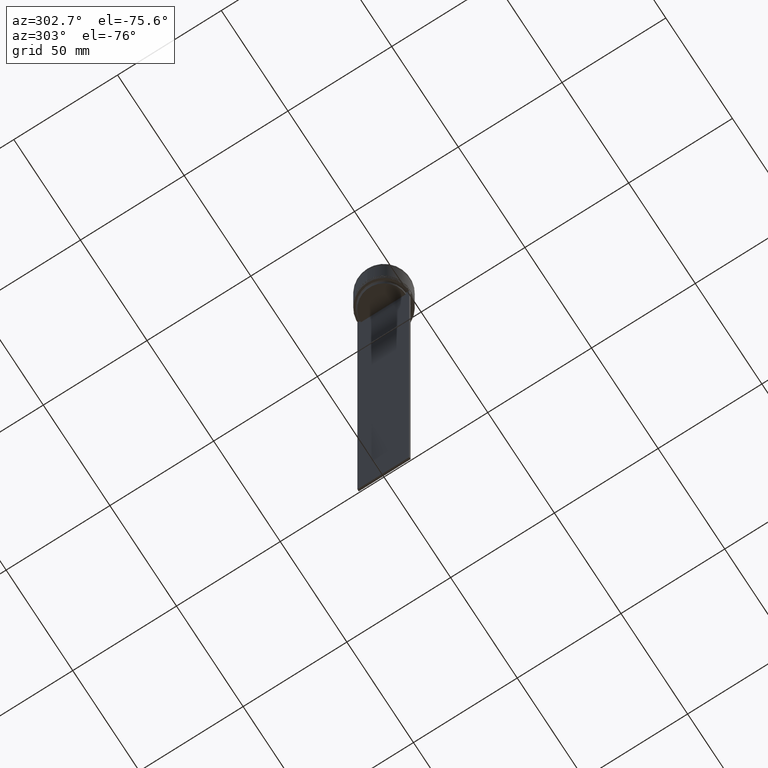
[diagram: clean part render]
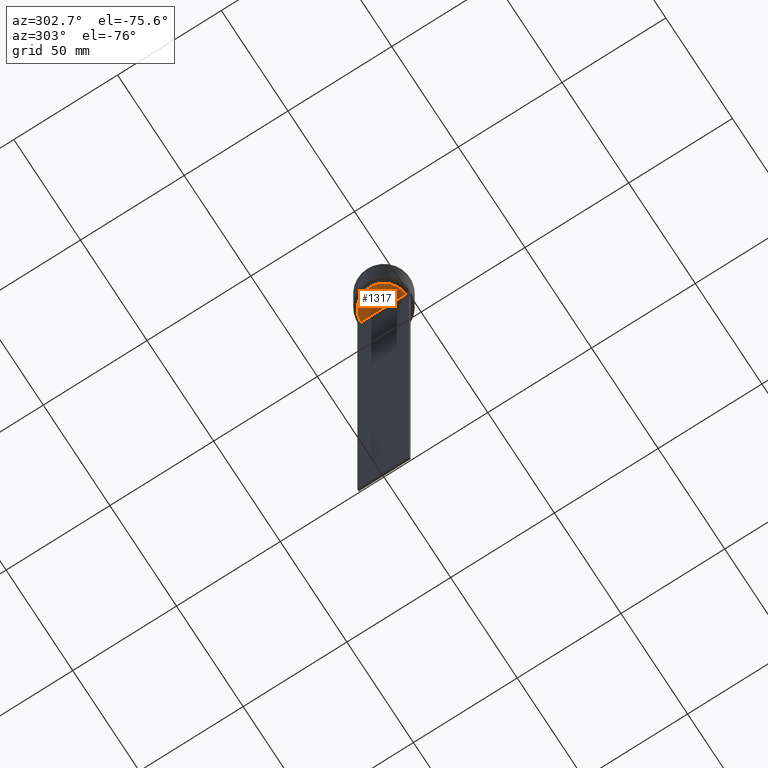
[diagram: same view with one face highlighted and labeled with its STEP entity id]
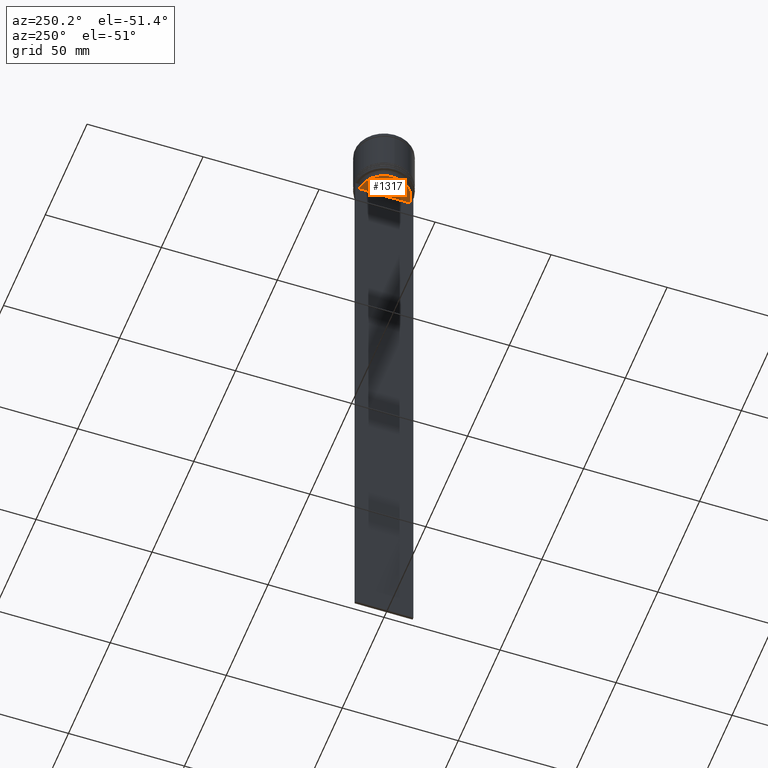
[diagram: same view with one face highlighted and labeled with its STEP entity id]
A machine part, auxiliary view. The second image highlights one B-rep face of the part: STEP entity #1317.
A second angle (auxiliary view) of the same face is appended — the face is thin or edge-on in the first view.
In plain terms, the highlighted planar face has unit normal (0, -0, 1).
Its self-contained STEP definition (entity closure, byte-faithful):
#55 = EDGE_CURVE ( 'NONE', #2069, #106, #967, .T. ) ;
#105 = CARTESIAN_POINT ( 'NONE',  ( 0.000000000000000000, 0.000000000000000000, -25.50000000000000000 ) ) ;
#106 = VERTEX_POINT ( 'NONE', #701 ) ;
#126 = DIRECTION ( 'NONE',  ( 0.000000000000000000, -0.000000000000000000, 1.000000000000000000 ) ) ;
#194 = CARTESIAN_POINT ( 'NONE',  ( -0.5000000000000000000, 10.88852607105296855, -25.50000000000000000 ) ) ;
#332 = ORIENTED_EDGE ( 'NONE', *, *, #1359, .F. ) ;
#439 = AXIS2_PLACEMENT_3D ( 'NONE', #1722, #126, #1244 ) ;
#458 = DIRECTION ( 'NONE',  ( 1.000000000000000000, 0.000000000000000000, 0.000000000000000000 ) ) ;
#639 = VECTOR ( 'NONE', #733, 1000.000000000000000 ) ;
#701 = CARTESIAN_POINT ( 'NONE',  ( -0.5000000000000000000, -10.88852607105296855, -25.50000000000000000 ) ) ;
#733 = DIRECTION ( 'NONE',  ( 0.000000000000000000, -1.000000000000000000, 0.000000000000000000 ) ) ;
#967 = LINE ( 'NONE', #1210, #639 ) ;
#1100 = FACE_OUTER_BOUND ( 'NONE', #1726, .T. ) ;
#1210 = CARTESIAN_POINT ( 'NONE',  ( -0.5000000000000000000, 10.90000000000000924, -25.50000000000000000 ) ) ;
#1244 = DIRECTION ( 'NONE',  ( 1.000000000000000000, 0.000000000000000000, 0.000000000000000000 ) ) ;
#1303 = ORIENTED_EDGE ( 'NONE', *, *, #55, .T. ) ;
#1317 = ADVANCED_FACE ( 'NONE', ( #1100 ), #1734, .F. ) ;
#1359 = EDGE_CURVE ( 'NONE', #2069, #106, #1513, .T. ) ;
#1513 = CIRCLE ( 'NONE', #2011, 10.90000000000000924 ) ;
#1722 = CARTESIAN_POINT ( 'NONE',  ( 0.000000000000000000, 10.90000000000000924, -25.50000000000000000 ) ) ;
#1726 = EDGE_LOOP ( 'NONE', ( #332, #1303 ) ) ;
#1734 = PLANE ( 'NONE',  #439 ) ;
#2011 = AXIS2_PLACEMENT_3D ( 'NONE', #105, #2027, #458 ) ;
#2027 = DIRECTION ( 'NONE',  ( -0.000000000000000000, -0.000000000000000000, 1.000000000000000000 ) ) ;
#2069 = VERTEX_POINT ( 'NONE', #194 ) ;